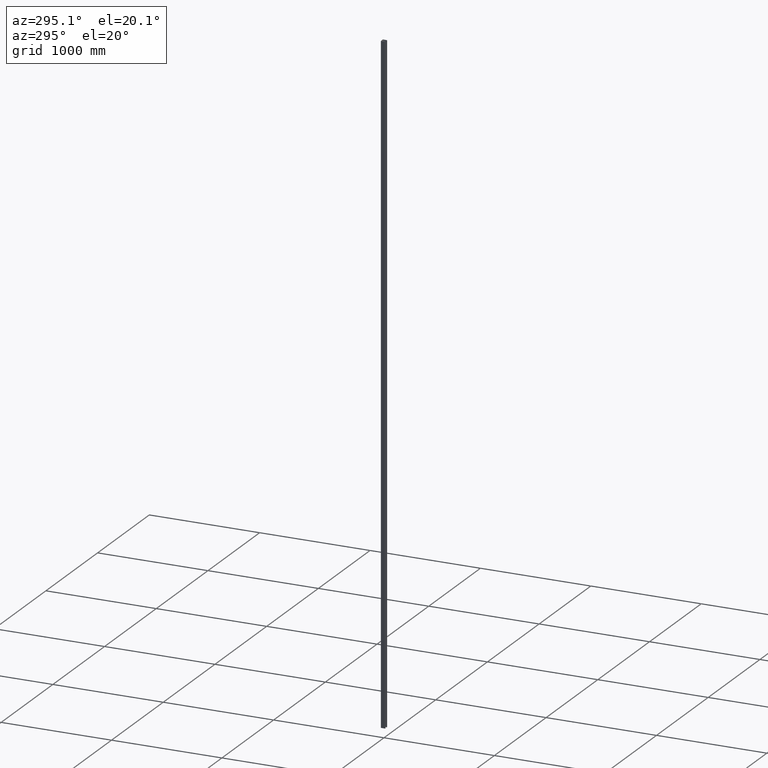
[diagram: clean part render]
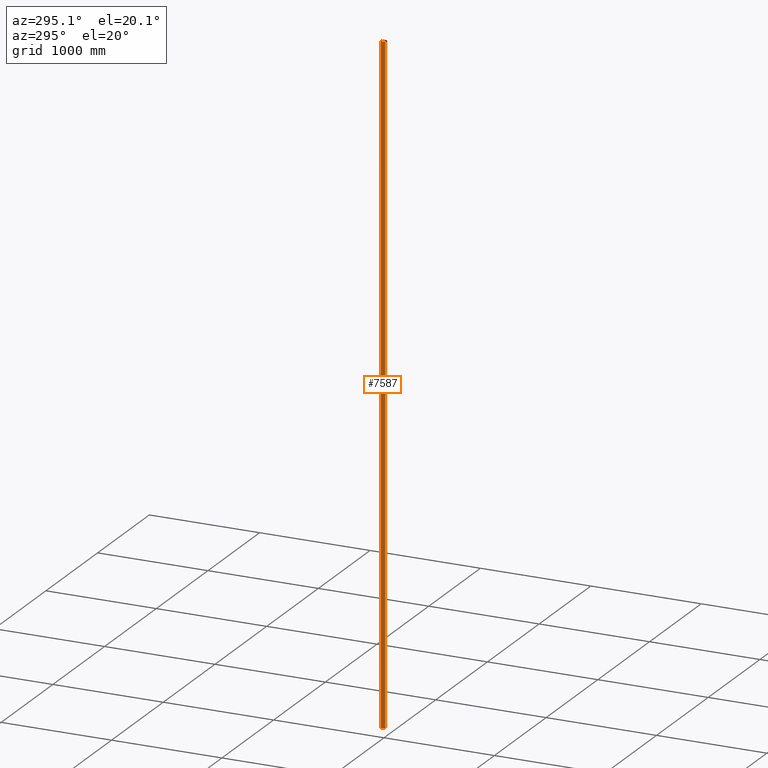
[diagram: same view with one face highlighted and labeled with its STEP entity id]
A machine part, auxiliary view. The second image highlights one B-rep face of the part: STEP entity #7587.
In plain terms, the highlighted planar face has unit normal (1, 0, -0).
Its self-contained STEP definition (entity closure, byte-faithful):
#258 = VECTOR ( 'NONE', #4957, 1000.000000000000000 ) ;
#541 = EDGE_LOOP ( 'NONE', ( #12043, #7759, #15624, #11251 ) ) ;
#1345 = VERTEX_POINT ( 'NONE', #15235 ) ;
#1520 = EDGE_CURVE ( 'NONE', #10401, #1345, #5622, .T. ) ;
#1825 = LINE ( 'NONE', #12055, #258 ) ;
#2015 = VECTOR ( 'NONE', #10502, 1000.000000000000000 ) ;
#2080 = EDGE_CURVE ( 'NONE', #11285, #14167, #1825, .T. ) ;
#2596 = DIRECTION ( 'NONE',  ( 1.000000000000000000, 0.000000000000000000, -0.000000000000000000 ) ) ;
#3245 = CARTESIAN_POINT ( 'NONE',  ( -20.00000000000001066, 18.00000000000001066, 3000.000000000000000 ) ) ;
#4261 = CARTESIAN_POINT ( 'NONE',  ( -20.00000000000000711, 18.00000000000001066, 3000.000000000000000 ) ) ;
#4405 = VECTOR ( 'NONE', #4457, 1000.000000000000000 ) ;
#4457 = DIRECTION ( 'NONE',  ( 0.000000000000000000, -1.000000000000000000, 0.000000000000000000 ) ) ;
#4691 = LINE ( 'NONE', #9169, #11613 ) ;
#4957 = DIRECTION ( 'NONE',  ( -0.000000000000000000, -0.000000000000000000, -1.000000000000000000 ) ) ;
#5622 = LINE ( 'NONE', #11861, #2015 ) ;
#6856 = DIRECTION ( 'NONE',  ( 0.000000000000000000, -1.000000000000000000, 0.000000000000000000 ) ) ;
#7587 = ADVANCED_FACE ( 'NONE', ( #13588 ), #7594, .F. ) ;
#7594 = PLANE ( 'NONE',  #13974 ) ;
#7759 = ORIENTED_EDGE ( 'NONE', *, *, #2080, .F. ) ;
#8072 = EDGE_CURVE ( 'NONE', #10401, #11285, #12082, .T. ) ;
#8877 = CARTESIAN_POINT ( 'NONE',  ( -20.00000000000001066, -17.99999999999999645, -3000.000000000000000 ) ) ;
#9169 = CARTESIAN_POINT ( 'NONE',  ( -20.00000000000001066, 18.00000000000001066, -3000.000000000000000 ) ) ;
#9903 = CARTESIAN_POINT ( 'NONE',  ( -20.00000000000001066, 18.00000000000001066, 3000.000000000000000 ) ) ;
#10401 = VERTEX_POINT ( 'NONE', #4261 ) ;
#10502 = DIRECTION ( 'NONE',  ( -0.000000000000000000, -0.000000000000000000, -1.000000000000000000 ) ) ;
#10535 = CARTESIAN_POINT ( 'NONE',  ( -20.00000000000001066, -17.99999999999999645, 3000.000000000000000 ) ) ;
#11251 = ORIENTED_EDGE ( 'NONE', *, *, #1520, .T. ) ;
#11285 = VERTEX_POINT ( 'NONE', #10535 ) ;
#11613 = VECTOR ( 'NONE', #6856, 1000.000000000000000 ) ;
#11861 = CARTESIAN_POINT ( 'NONE',  ( -20.00000000000000711, 18.00000000000001066, 3000.000000000000000 ) ) ;
#12043 = ORIENTED_EDGE ( 'NONE', *, *, #13455, .T. ) ;
#12055 = CARTESIAN_POINT ( 'NONE',  ( -20.00000000000001066, -17.99999999999999645, 3000.000000000000000 ) ) ;
#12082 = LINE ( 'NONE', #3245, #4405 ) ;
#12586 = DIRECTION ( 'NONE',  ( -0.000000000000000000, 0.000000000000000000, -1.000000000000000000 ) ) ;
#13455 = EDGE_CURVE ( 'NONE', #1345, #14167, #4691, .T. ) ;
#13588 = FACE_OUTER_BOUND ( 'NONE', #541, .T. ) ;
#13974 = AXIS2_PLACEMENT_3D ( 'NONE', #9903, #2596, #12586 ) ;
#14167 = VERTEX_POINT ( 'NONE', #8877 ) ;
#15235 = CARTESIAN_POINT ( 'NONE',  ( -20.00000000000000711, 18.00000000000001066, -3000.000000000000000 ) ) ;
#15624 = ORIENTED_EDGE ( 'NONE', *, *, #8072, .F. ) ;